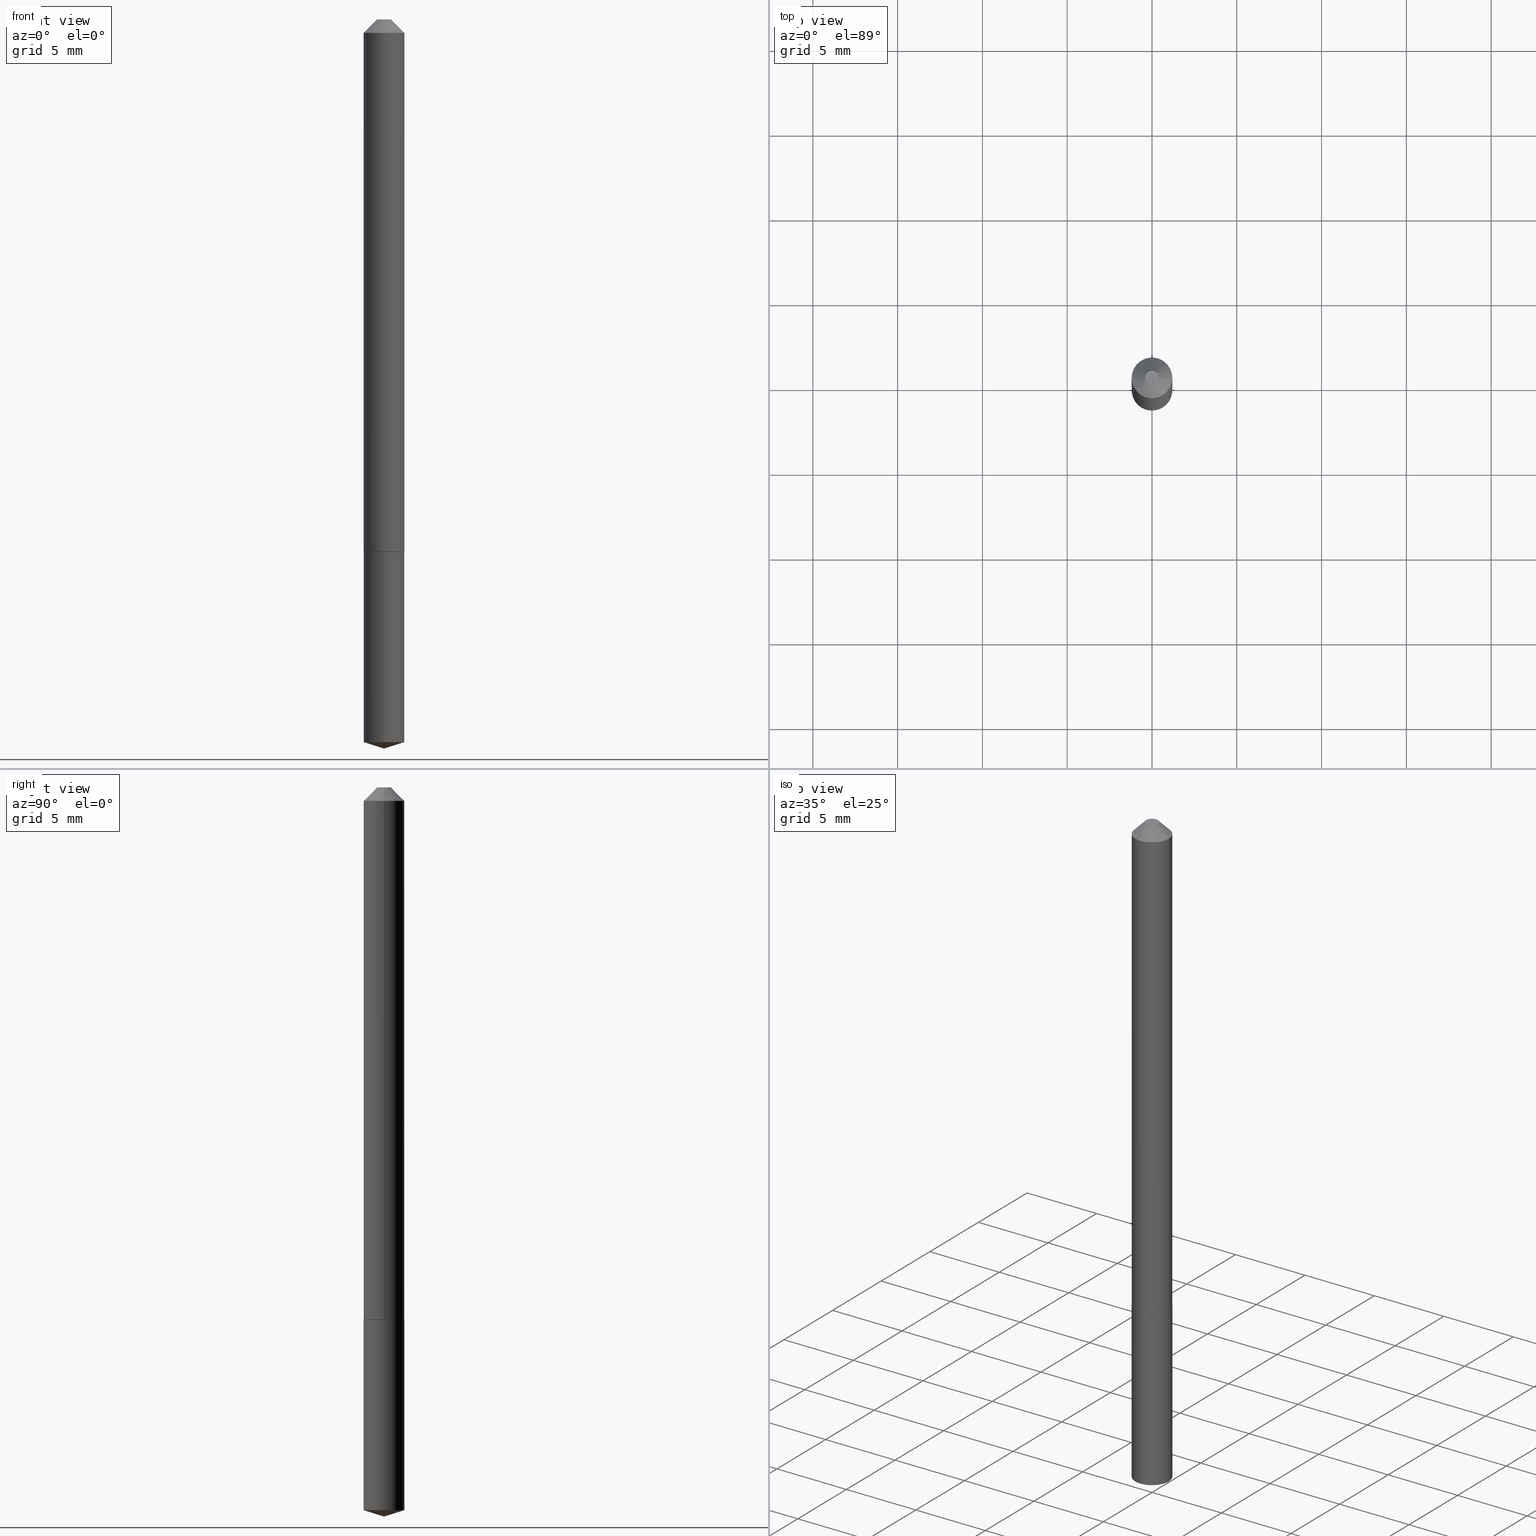
[diagram: canonical four-view strip — front | top / right | iso, engineering-drawing reading convention]
A machine part, canonical four-view strip (front | top / right | iso — engineering-drawing reading convention). The complete STEP part file that produces these views, byte-faithful:
ISO-10303-21;
HEADER;
FILE_DESCRIPTION (( 'STEP AP203' ),
    '1' );
FILE_NAME ('68672.STEP',
    '2024-04-23T13:31:14',
    ( '' ),
    ( '' ),
    'SwSTEP 2.0',
    'SolidWorks 2023',
    '' );
FILE_SCHEMA (( 'CONFIG_CONTROL_DESIGN' ));
ENDSEC;

DATA;
#1 = DIRECTION ( 'NONE',  ( -2.445468806185136597E-29, 3.491481338843145583E-15, 1.000000000000000000 ) ) ;
#2 =( CONVERSION_BASED_UNIT ( 'INCH', #122 ) LENGTH_UNIT ( ) NAMED_UNIT ( #339 ) );
#3 = CONICAL_SURFACE ( 'NONE', #368, 124.8659371009162413, 1.265363707695894346 ) ;
#4 = DIRECTION ( 'NONE',  ( 1.000000000000000000, -6.982962677686258822E-15, 0.000000000000000000 ) ) ;
#5 = AXIS2_PLACEMENT_3D ( 'NONE', #38, #278, #69 ) ;
#6 = CALENDAR_DATE ( 2024, 23, 4 ) ;
#7 = ORIENTED_EDGE ( 'NONE', *, *, #27, .F. ) ;
#8 = DIRECTION ( 'NONE',  ( 1.000000000000000000, -6.982962677686264344E-15, 0.000000000000000000 ) ) ;
#9 = CC_DESIGN_PERSON_AND_ORGANIZATION_ASSIGNMENT ( #281, #375, ( #144 ) ) ;
#10 = LOCAL_TIME ( 9, 31, 14.00000000000000000, #132 ) ;
#11 = ORIENTED_EDGE ( 'NONE', *, *, #201, .F. ) ;
#12 = DIRECTION ( 'NONE',  ( 6.982962677686265922E-15, 1.000000000000000000, -3.491451084886864100E-15 ) ) ;
#13 = ORIENTED_EDGE ( 'NONE', *, *, #333, .T. ) ;
#14 = DIRECTION ( 'NONE',  ( -1.000000000000000000, 6.982962677686266711E-15, 0.000000000000000000 ) ) ;
#15 = DIRECTION ( 'NONE',  ( -2.445468806185136597E-29, 3.491481338843145583E-15, 1.000000000000000000 ) ) ;
#16 = AXIS2_PLACEMENT_3D ( 'NONE', #216, #63, #243 ) ;
#17 = CIRCLE ( 'NONE', #94, 0.04724999999999999339 ) ;
#18 = ORIENTED_EDGE ( 'NONE', *, *, #40, .T. ) ;
#19 = ADVANCED_FACE ( 'NONE', ( #26 ), #149, .T. ) ;
#20 = VERTEX_POINT ( 'NONE', #139 ) ;
#21 = ORIENTED_EDGE ( 'NONE', *, *, #27, .T. ) ;
#22 = DATE_AND_TIME ( #171, #113 ) ;
#23 = AXIS2_PLACEMENT_3D ( 'NONE', #174, #313, #8 ) ;
#24 = ORIENTED_EDGE ( 'NONE', *, *, #106, .F. ) ;
#25 = AXIS2_PLACEMENT_3D ( 'NONE', #373, #277, #223 ) ;
#26 = FACE_OUTER_BOUND ( 'NONE', #199, .T. ) ;
#27 = EDGE_CURVE ( 'NONE', #172, #289, #336, .T. ) ;
#28 = AXIS2_PLACEMENT_3D ( 'NONE', #212, #271, #115 ) ;
#29 =( GEOMETRIC_REPRESENTATION_CONTEXT ( 3 ) GLOBAL_UNCERTAINTY_ASSIGNED_CONTEXT ( ( #295 ) ) GLOBAL_UNIT_ASSIGNED_CONTEXT ( ( #2, #306, #248 ) ) REPRESENTATION_CONTEXT ( 'NONE', 'WORKASPACE' ) );
#30 = PERSON_AND_ORGANIZATION ( #310, #117 ) ;
#31 = DIRECTION ( 'NONE',  ( -0.7071067811865414665, 7.493145998870332072E-15, 0.7071067811865535679 ) ) ;
#32 = CC_DESIGN_PERSON_AND_ORGANIZATION_ASSIGNMENT ( #249, #151, ( #144 ) ) ;
#33 = CARTESIAN_POINT ( 'NONE',  ( 4.139969906576709418E-29, -5.910677541604971908E-15, -1.692900000000000071 ) ) ;
#34 = EDGE_LOOP ( 'NONE', ( #206, #245, #141, #18 ) ) ;
#35 = CONICAL_SURFACE ( 'NONE', #268, 0.04725000000000000727, 0.7853981633974450594 ) ;
#36 = DIRECTION ( 'NONE',  ( 1.000000000000000000, 0.000000000000000000, 0.000000000000000000 ) ) ;
#37 = CARTESIAN_POINT ( 'NONE',  ( 4.103511204680673828E-29, -5.858699764941837648E-15, -1.678002132225468346 ) ) ;
#38 = CARTESIAN_POINT ( 'NONE',  ( -2.919964657261587705E-48, 4.168935659749541235E-34, 1.194030629168667070E-19 ) ) ;
#39 = PERSON_AND_ORGANIZATION_ROLE ( 'creator' ) ;
#40 = EDGE_CURVE ( 'NONE', #345, #107, #282, .T. ) ;
#41 = PERSON_AND_ORGANIZATION_ROLE ( 'classification_officer' ) ;
#42 = EDGE_LOOP ( 'NONE', ( #299, #356, #311 ) ) ;
#43 = CC_DESIGN_APPROVAL ( #120, ( #308 ) ) ;
#44 = CARTESIAN_POINT ( 'NONE',  ( -0.01599999999999999686, 1.662817987624036876E-16, 2.388061258327615898E-19 ) ) ;
#45 = EDGE_CURVE ( 'NONE', #72, #126, #266, .T. ) ;
#46 = LINE ( 'NONE', #96, #292 ) ;
#47 = CONICAL_SURFACE ( 'NONE', #330, 0.04725000000000000727, 0.7853981633974450594 ) ;
#48 = PERSON_AND_ORGANIZATION ( #310, #117 ) ;
#49 = CARTESIAN_POINT ( 'NONE',  ( 4.139970364593886493E-29, -5.910677541604971908E-15, -1.692900000000000071 ) ) ;
#50 = PRODUCT_DEFINITION ( 'UNKNOWN', '', #144, #210 ) ;
#51 = PLANE ( 'NONE',  #135 ) ;
#52 = CARTESIAN_POINT ( 'NONE',  ( 7.642090019328602662E-31, -1.091087918388490267E-16, -0.03125000000000020817 ) ) ;
#53 = DIRECTION ( 'NONE',  ( 2.445468806185136597E-29, -3.491481338843145583E-15, -1.000000000000000000 ) ) ;
#54 = ORIENTED_EDGE ( 'NONE', *, *, #201, .T. ) ;
#55 = DIRECTION ( 'NONE',  ( 1.000000000000000000, -6.982962677686266711E-15, 4.876172707875571814E-29 ) ) ;
#56 = CONICAL_SURFACE ( 'NONE', #58, 124.8659371009162413, 1.265363707695894346 ) ;
#57 = PRODUCT_RELATED_PRODUCT_CATEGORY ( 'detail', '', ( #370 ) ) ;
#58 = AXIS2_PLACEMENT_3D ( 'NONE', #324, #301, #357 ) ;
#59 = CYLINDRICAL_SURFACE ( 'NONE', #150, 0.04725000000000006972 ) ;
#60 = VERTEX_POINT ( 'NONE', #267 ) ;
#61 = CARTESIAN_POINT ( 'NONE',  ( 4.139917674098620445E-29, -5.910752341486483366E-15, -1.692900000000000071 ) ) ;
#62 = AXIS2_PLACEMENT_3D ( 'NONE', #111, #293, #80 ) ;
#63 = DIRECTION ( 'NONE',  ( -2.445468806185136597E-29, 3.491481338843145583E-15, 1.000000000000000000 ) ) ;
#64 = VERTEX_POINT ( 'NONE', #360 ) ;
#65 = CALENDAR_DATE ( 2024, 23, 4 ) ;
#66 = CARTESIAN_POINT ( 'NONE',  ( 3.023088538206066600E-29, -4.316169231077897395E-15, -1.236200000000000410 ) ) ;
#67 = LINE ( 'NONE', #155, #367 ) ;
#68 = CALENDAR_DATE ( 2024, 23, 4 ) ;
#69 = DIRECTION ( 'NONE',  ( -1.000000000000000000, 6.982962677686265922E-15, -4.876176775795935793E-29 ) ) ;
#70 = ORIENTED_EDGE ( 'NONE', *, *, #89, .F. ) ;
#71 = AXIS2_PLACEMENT_3D ( 'NONE', #90, #114, #358 ) ;
#72 = VERTEX_POINT ( 'NONE', #33 ) ;
#73 = DIRECTION ( 'NONE',  ( -2.445489932409893586E-29, 3.491451084886863706E-15, 1.000000000000000000 ) ) ;
#74 = EDGE_CURVE ( 'NONE', #237, #64, #157, .T. ) ;
#75 = DIRECTION ( 'NONE',  ( 2.445489932409892745E-29, -3.491451084886864100E-15, -1.000000000000000000 ) ) ;
#76 = ORIENTED_EDGE ( 'NONE', *, *, #365, .F. ) ;
#77 = EDGE_CURVE ( 'NONE', #289, #305, #145, .T. ) ;
#78 = DIRECTION ( 'NONE',  ( -6.982962677686267499E-15, -1.000000000000000000, 3.500519750498671300E-15 ) ) ;
#79 =( LENGTH_UNIT ( ) NAMED_UNIT ( * ) SI_UNIT ( $, .METRE. ) );
#80 = DIRECTION ( 'NONE',  ( 1.000000000000000000, -6.982962677686264344E-15, 0.000000000000000000 ) ) ;
#81 = CC_DESIGN_APPROVAL ( #236, ( #144 ) ) ;
#82 = ORIENTED_EDGE ( 'NONE', *, *, #77, .F. ) ;
#83 = DIRECTION ( 'NONE',  ( -2.445489932409893586E-29, 3.491451084886863706E-15, 1.000000000000000000 ) ) ;
#84 = ORIENTED_EDGE ( 'NONE', *, *, #246, .F. ) ;
#85 = CC_DESIGN_DATE_AND_TIME_ASSIGNMENT ( #314, #100, ( #308 ) ) ;
#86 = DIRECTION ( 'NONE',  ( -2.445468806185136597E-29, 3.491481338843145583E-15, 1.000000000000000000 ) ) ;
#87 = LOCAL_TIME ( 9, 31, 14.00000000000000000, #276 ) ;
#88 = CARTESIAN_POINT ( 'NONE',  ( 0.04725000000000000727, -4.390537783595251574E-16, -0.03125000000000020817 ) ) ;
#89 = EDGE_CURVE ( 'NONE', #107, #345, #388, .T. ) ;
#90 = CARTESIAN_POINT ( 'NONE',  ( -5.839929314523175409E-48, 8.337871319499082469E-34, 2.388061258337334140E-19 ) ) ;
#91 = PERSON_AND_ORGANIZATION ( #310, #117 ) ;
#92 = CARTESIAN_POINT ( 'NONE',  ( -3.299449865206457842E-16, -0.04725000000000431633, -1.236199999999999966 ) ) ;
#93 = CIRCLE ( 'NONE', #366, 0.04725000000000015299 ) ;
#94 = AXIS2_PLACEMENT_3D ( 'NONE', #381, #73, #138 ) ;
#95 = MANIFOLD_SOLID_BREP ( 'Body-Move/Copy2[1]', #344 ) ;
#96 = CARTESIAN_POINT ( 'NONE',  ( -0.04725000000000000727, 2.208361946818271286E-16, -0.03125000000000020817 ) ) ;
#97 = VECTOR ( 'NONE', #280, 39.37007874015748143 ) ;
#98 = EDGE_CURVE ( 'NONE', #60, #305, #93, .T. ) ;
#99 = DIRECTION ( 'NONE',  ( 0.7071067811865414665, -2.468850131082193557E-15, 0.7071067811865535679 ) ) ;
#100 = DATE_TIME_ROLE ( 'classification_date' ) ;
#101 = DIRECTION ( 'NONE',  ( -2.445468806185136877E-29, 3.491481338843145188E-15, 1.000000000000000000 ) ) ;
#102 = ORIENTED_EDGE ( 'NONE', *, *, #77, .T. ) ;
#103 = DIRECTION ( 'NONE',  ( 1.000000000000000000, -6.982962677686264344E-15, 0.000000000000000000 ) ) ;
#104 = CONICAL_SURFACE ( 'NONE', #62, 0.04725000000000015299, 0.7853981633974397303 ) ;
#105 = AXIS2_PLACEMENT_3D ( 'NONE', #371, #250, #125 ) ;
#106 = EDGE_CURVE ( 'NONE', #126, #182, #179, .T. ) ;
#107 = VERTEX_POINT ( 'NONE', #88 ) ;
#108 = EDGE_LOOP ( 'NONE', ( #11, #140, #167, #202 ) ) ;
#109 = CARTESIAN_POINT ( 'NONE',  ( 0.000000000000000000, 0.000000000000000000, 0.000000000000000000 ) ) ;
#110 = CLOSED_SHELL ( 'NONE', ( #321, #352, #177, #343, #147, #112, #192, #229 ) ) ;
#111 = CARTESIAN_POINT ( 'NONE',  ( 3.021865803802974359E-29, -4.314423490408476680E-15, -1.235700000000000465 ) ) ;
#112 = ADVANCED_FACE ( 'NONE', ( #215 ), #169, .T. ) ;
#113 = LOCAL_TIME ( 9, 31, 14.00000000000000000, #351 ) ;
#114 = DIRECTION ( 'NONE',  ( -2.445468806185136597E-29, 3.491481338843145583E-15, 1.000000000000000000 ) ) ;
#115 = DIRECTION ( 'NONE',  ( -6.982962677686265922E-15, -1.000000000000000000, 5.781688875479922944E-15 ) ) ;
#116 = DIRECTION ( 'NONE',  ( 1.000000000000000000, -6.982962677686265922E-15, 4.876176775795935793E-29 ) ) ;
#117 = ORGANIZATION ( 'UNSPECIFIED', 'UNSPECIFIED', '' ) ;
#118 = DIRECTION ( 'NONE',  ( 0.000000000000000000, 0.000000000000000000, 1.000000000000000000 ) ) ;
#119 = CARTESIAN_POINT ( 'NONE',  ( 7.642090019328602662E-31, -1.091087918388490267E-16, -0.03125000000000020817 ) ) ;
#120 = APPROVAL ( #252, 'UNSPECIFIED' ) ;
#121 = APPLICATION_CONTEXT ( 'configuration controlled 3d designs of mechanical parts and assemblies' ) ;
#122 = LENGTH_MEASURE_WITH_UNIT ( LENGTH_MEASURE( 0.02539999999999999897 ), #79 );
#123 = DIRECTION ( 'NONE',  ( -2.445489932409893586E-29, 3.491451084886863706E-15, 1.000000000000000000 ) ) ;
#124 = DATE_AND_TIME ( #65, #244 ) ;
#125 = DIRECTION ( 'NONE',  ( 1.000000000000000000, -6.982962677686258822E-15, 0.000000000000000000 ) ) ;
#126 = VERTEX_POINT ( 'NONE', #143 ) ;
#127 = CONICAL_SURFACE ( 'NONE', #23, 0.04725000000000015299, 0.7853981633974397303 ) ;
#128 = EDGE_CURVE ( 'NONE', #182, #270, #290, .T. ) ;
#129 = EDGE_LOOP ( 'NONE', ( #256, #176 ) ) ;
#130 = LINE ( 'NONE', #374, #142 ) ;
#131 = CC_DESIGN_SECURITY_CLASSIFICATION ( #308, ( #144 ) ) ;
#132 = COORDINATED_UNIVERSAL_TIME_OFFSET ( 5, 0, .BEHIND. ) ;
#133 = CARTESIAN_POINT ( 'NONE',  ( -5.839929314523175409E-48, 8.337871319499082469E-34, 2.388061258337334140E-19 ) ) ;
#134 = VECTOR ( 'NONE', #31, 39.37007874015748143 ) ;
#135 = AXIS2_PLACEMENT_3D ( 'NONE', #380, #75, #12 ) ;
#136 = FACE_OUTER_BOUND ( 'NONE', #42, .T. ) ;
#137 = ORIENTED_EDGE ( 'NONE', *, *, #128, .F. ) ;
#138 = DIRECTION ( 'NONE',  ( -6.982962677686265922E-15, -1.000000000000000000, 5.781688875479922944E-15 ) ) ;
#139 = CARTESIAN_POINT ( 'NONE',  ( 3.357314426466882624E-16, 0.04724999999999413003, -1.678002132225468790 ) ) ;
#140 = ORIENTED_EDGE ( 'NONE', *, *, #254, .T. ) ;
#141 = ORIENTED_EDGE ( 'NONE', *, *, #296, .T. ) ;
#142 = VECTOR ( 'NONE', #99, 39.37007874015748143 ) ;
#143 = CARTESIAN_POINT ( 'NONE',  ( -3.299449865206349866E-16, -0.04725000000000584288, -1.678002132225468124 ) ) ;
#144 = PRODUCT_DEFINITION_FORMATION_WITH_SPECIFIED_SOURCE ( 'ANY', '', #370, .NOT_KNOWN. ) ;
#145 = LINE ( 'NONE', #329, #134 ) ;
#146 = DIRECTION ( 'NONE',  ( -2.438088387897960049E-29, 3.491481338843145188E-15, 1.000000000000000000 ) ) ;
#147 = ADVANCED_FACE ( 'NONE', ( #387 ), #104, .T. ) ;
#148 = DIRECTION ( 'NONE',  ( -2.445489932409893305E-29, 3.491451084886864100E-15, 1.000000000000000000 ) ) ;
#149 = CYLINDRICAL_SURFACE ( 'NONE', #28, 0.04724999999999999339 ) ;
#150 = AXIS2_PLACEMENT_3D ( 'NONE', #258, #196, #297 ) ;
#151 = PERSON_AND_ORGANIZATION_ROLE ( 'design_supplier' ) ;
#152 = APPROVAL ( #205, 'UNSPECIFIED' ) ;
#153 = EDGE_LOOP ( 'NONE', ( #7, #326 ) ) ;
#154 = LOCAL_TIME ( 9, 31, 14.00000000000000000, #224 ) ;
#155 = CARTESIAN_POINT ( 'NONE',  ( 0.04725000000000006972, -3.299449865206765991E-16, 2.303993526563583334E-30 ) ) ;
#156 = APPROVAL_ROLE ( '' ) ;
#157 = CIRCLE ( 'NONE', #71, 0.01599999999999999686 ) ;
#158 = ADVANCED_FACE ( 'NONE', ( #204 ), #56, .T. ) ;
#159 = ORIENTED_EDGE ( 'NONE', *, *, #228, .F. ) ;
#160 = LINE ( 'NONE', #286, #304 ) ;
#161 = DIRECTION ( 'NONE',  ( 2.445468806185136597E-29, -3.491481338843145583E-15, -1.000000000000000000 ) ) ;
#162 = DIRECTION ( 'NONE',  ( -1.000000000000000000, 6.982962677686266711E-15, 0.000000000000000000 ) ) ;
#163 = EDGE_LOOP ( 'NONE', ( #21, #102, #175, #159 ) ) ;
#164 = AXIS2_PLACEMENT_3D ( 'NONE', #119, #364, #355 ) ;
#165 = CIRCLE ( 'NONE', #361, 0.04725000000000015299 ) ;
#166 = PERSON_AND_ORGANIZATION ( #310, #117 ) ;
#167 = ORIENTED_EDGE ( 'NONE', *, *, #106, .T. ) ;
#168 = PERSON_AND_ORGANIZATION_ROLE ( 'design_owner' ) ;
#169 = CYLINDRICAL_SURFACE ( 'NONE', #382, 0.04725000000000006972 ) ;
#170 = PRODUCT_DEFINITION_SHAPE ( 'NONE', 'NONE',  #50 ) ;
#171 = CALENDAR_DATE ( 2024, 23, 4 ) ;
#172 = VERTEX_POINT ( 'NONE', #334 ) ;
#173 = DIRECTION ( 'NONE',  ( -0.7071067811865452413, 2.468850131082233000E-15, -0.7071067811865497932 ) ) ;
#174 = CARTESIAN_POINT ( 'NONE',  ( 3.021865803802974359E-29, -4.314423490408476680E-15, -1.235700000000000465 ) ) ;
#175 = ORIENTED_EDGE ( 'NONE', *, *, #98, .F. ) ;
#176 = ORIENTED_EDGE ( 'NONE', *, *, #180, .T. ) ;
#177 = ADVANCED_FACE ( 'NONE', ( #307 ), #127, .T. ) ;
#178 = VECTOR ( 'NONE', #346, 39.37007874015748143 ) ;
#179 = LINE ( 'NONE', #303, #197 ) ;
#180 = EDGE_CURVE ( 'NONE', #270, #182, #379, .T. ) ;
#181 = MECHANICAL_CONTEXT ( 'NONE', #279, 'mechanical' ) ;
#182 = VERTEX_POINT ( 'NONE', #92 ) ;
#183 = VECTOR ( 'NONE', #241, 39.37007874015748854 ) ;
#184 = CARTESIAN_POINT ( 'NONE',  ( 0.000000000000000000, 0.000000000000000000, 0.000000000000000000 ) ) ;
#185 = CC_DESIGN_PERSON_AND_ORGANIZATION_ASSIGNMENT ( #30, #41, ( #308 ) ) ;
#186 = PLANE ( 'NONE',  #5 ) ;
#187 = ORIENTED_EDGE ( 'NONE', *, *, #340, .F. ) ;
#188 = DIRECTION ( 'NONE',  ( -2.445489932409893586E-29, 3.491451084886863706E-15, 1.000000000000000000 ) ) ;
#189 = AXIS2_PLACEMENT_3D ( 'NONE', #133, #15, #55 ) ;
#190 = CARTESIAN_POINT ( 'NONE',  ( 3.357314426466883117E-16, 0.04724999999999567740, -1.236200000000000632 ) ) ;
#191 = DATE_AND_TIME ( #68, #10 ) ;
#192 = ADVANCED_FACE ( 'NONE', ( #217 ), #47, .T. ) ;
#193 = ORIENTED_EDGE ( 'NONE', *, *, #340, .T. ) ;
#194 = DIRECTION ( 'NONE',  ( -2.445468806185136877E-29, 3.491481338843145188E-15, 1.000000000000000000 ) ) ;
#195 = ORIENTED_EDGE ( 'NONE', *, *, #296, .F. ) ;
#196 = DIRECTION ( 'NONE',  ( -2.445468806185136597E-29, 3.491481338843145583E-15, 1.000000000000000000 ) ) ;
#197 = VECTOR ( 'NONE', #148, 39.37007874015748143 ) ;
#198 = FACE_OUTER_BOUND ( 'NONE', #129, .T. ) ;
#199 = EDGE_LOOP ( 'NONE', ( #193, #54, #137, #24 ) ) ;
#200 = ORIENTED_EDGE ( 'NONE', *, *, #45, .F. ) ;
#201 = EDGE_CURVE ( 'NONE', #20, #270, #160, .T. ) ;
#202 = ORIENTED_EDGE ( 'NONE', *, *, #180, .F. ) ;
#203 = CIRCLE ( 'NONE', #105, 0.04675000000000025663 ) ;
#204 = FACE_OUTER_BOUND ( 'NONE', #263, .T. ) ;
#205 = APPROVAL_STATUS ( 'not_yet_approved' ) ;
#206 = ORIENTED_EDGE ( 'NONE', *, *, #337, .F. ) ;
#207 = ORIENTED_EDGE ( 'NONE', *, *, #316, .T. ) ;
#208 = EDGE_LOOP ( 'NONE', ( #332, #13 ) ) ;
#209 = DIRECTION ( 'NONE',  ( -2.445468806185136597E-29, 3.491481338843145583E-15, 1.000000000000000000 ) ) ;
#210 = DESIGN_CONTEXT ( 'detailed design', #121, 'design' ) ;
#211 = EDGE_LOOP ( 'NONE', ( #82, #349, #390, #363 ) ) ;
#212 = CARTESIAN_POINT ( 'NONE',  ( 3.023088538206066600E-29, -4.316169231077897395E-15, -1.236200000000000410 ) ) ;
#213 = CIRCLE ( 'NONE', #225, 0.04724999999999999339 ) ;
#214 = DATE_AND_TIME ( #242, #87 ) ;
#215 = FACE_OUTER_BOUND ( 'NONE', #353, .T. ) ;
#216 = CARTESIAN_POINT ( 'NONE',  ( 7.642090019328602662E-31, -1.091087918388490267E-16, -0.03125000000000020817 ) ) ;
#217 = FACE_OUTER_BOUND ( 'NONE', #34, .T. ) ;
#218 = SECURITY_CLASSIFICATION_LEVEL ( 'unclassified' ) ;
#219 = APPROVAL_DATE_TIME ( #22, #152 ) ;
#220 = ADVANCED_FACE ( 'NONE', ( #136 ), #3, .T. ) ;
#221 = FACE_OUTER_BOUND ( 'NONE', #108, .T. ) ;
#222 = AXIS2_PLACEMENT_3D ( 'NONE', #359, #83, #269 ) ;
#223 = DIRECTION ( 'NONE',  ( -6.982962677686265922E-15, -1.000000000000000000, 5.781688875479922944E-15 ) ) ;
#224 = COORDINATED_UNIVERSAL_TIME_OFFSET ( 5, 0, .BEHIND. ) ;
#225 = AXIS2_PLACEMENT_3D ( 'NONE', #37, #123, #369 ) ;
#226 = FACE_OUTER_BOUND ( 'NONE', #208, .T. ) ;
#227 = COORDINATED_UNIVERSAL_TIME_OFFSET ( 5, 0, .BEHIND. ) ;
#228 = EDGE_CURVE ( 'NONE', #172, #60, #130, .T. ) ;
#229 = ADVANCED_FACE ( 'NONE', ( #226 ), #186, .F. ) ;
#230 = CARTESIAN_POINT ( 'NONE',  ( 7.642090019328602662E-31, -1.091087918388490267E-16, -0.03125000000000020817 ) ) ;
#231 = MANIFOLD_SOLID_BREP ( 'Body-Move/Copy2[2]', #110 ) ;
#232 = AXIS2_PLACEMENT_3D ( 'NONE', #348, #146, #116 ) ;
#233 = ORIENTED_EDGE ( 'NONE', *, *, #98, .T. ) ;
#234 = PLANE ( 'NONE',  #232 ) ;
#235 = PERSON_AND_ORGANIZATION ( #310, #117 ) ;
#236 = APPROVAL ( #309, 'UNSPECIFIED' ) ;
#237 = VERTEX_POINT ( 'NONE', #44 ) ;
#238 = VECTOR ( 'NONE', #101, 39.37007874015748143 ) ;
#239 = EDGE_CURVE ( 'NONE', #289, #172, #203, .T. ) ;
#240 = EDGE_LOOP ( 'NONE', ( #233, #275, #70, #84 ) ) ;
#241 = DIRECTION ( 'NONE',  ( -6.659769872151637611E-15, -0.9537169507482274877, 0.3007057995042712317 ) ) ;
#242 = CALENDAR_DATE ( 2024, 23, 4 ) ;
#243 = DIRECTION ( 'NONE',  ( 1.000000000000000000, -6.982962677686266711E-15, 0.000000000000000000 ) ) ;
#244 = LOCAL_TIME ( 9, 31, 14.00000000000000000, #227 ) ;
#245 = ORIENTED_EDGE ( 'NONE', *, *, #74, .F. ) ;
#246 = EDGE_CURVE ( 'NONE', #60, #107, #67, .T. ) ;
#247 = DATE_TIME_ROLE ( 'creation_date' ) ;
#248 =( NAMED_UNIT ( * ) SI_UNIT ( $, .STERADIAN. ) SOLID_ANGLE_UNIT ( ) );
#249 = PERSON_AND_ORGANIZATION ( #310, #117 ) ;
#250 = DIRECTION ( 'NONE',  ( -2.445468806185136597E-29, 3.491481338843145583E-15, 1.000000000000000000 ) ) ;
#251 = EDGE_CURVE ( 'NONE', #72, #20, #317, .T. ) ;
#252 = APPROVAL_STATUS ( 'not_yet_approved' ) ;
#253 = ORIENTED_EDGE ( 'NONE', *, *, #251, .T. ) ;
#254 = EDGE_CURVE ( 'NONE', #20, #126, #213, .T. ) ;
#255 = CYLINDRICAL_SURFACE ( 'NONE', #284, 0.04724999999999999339 ) ;
#256 = ORIENTED_EDGE ( 'NONE', *, *, #128, .T. ) ;
#257 = LINE ( 'NONE', #377, #238 ) ;
#258 = CARTESIAN_POINT ( 'NONE',  ( 0.000000000000000000, 0.000000000000000000, 0.000000000000000000 ) ) ;
#259 = ORIENTED_EDGE ( 'NONE', *, *, #40, .F. ) ;
#260 = ORIENTED_EDGE ( 'NONE', *, *, #246, .T. ) ;
#261 = APPROVAL_PERSON_ORGANIZATION ( #166, #152, #325 ) ;
#262 = CARTESIAN_POINT ( 'NONE',  ( -9.213918740690224064E-28, 1.315479891878583587E-13, 37.67717874015747981 ) ) ;
#263 = EDGE_LOOP ( 'NONE', ( #200, #253, #187 ) ) ;
#264 = FACE_OUTER_BOUND ( 'NONE', #153, .T. ) ;
#265 = CC_DESIGN_PERSON_AND_ORGANIZATION_ASSIGNMENT ( #235, #168, ( #370 ) ) ;
#266 = LINE ( 'NONE', #61, #183 ) ;
#267 = CARTESIAN_POINT ( 'NONE',  ( 0.04725000000000015299, -4.644368476929153477E-15, -1.235700000000000465 ) ) ;
#268 = AXIS2_PLACEMENT_3D ( 'NONE', #52, #161, #14 ) ;
#269 = DIRECTION ( 'NONE',  ( -6.982962677686265922E-15, -1.000000000000000000, 5.781688875479922944E-15 ) ) ;
#270 = VERTEX_POINT ( 'NONE', #190 ) ;
#271 = DIRECTION ( 'NONE',  ( -2.445489932409893586E-29, 3.491451084886863706E-15, 1.000000000000000000 ) ) ;
#272 = ADVANCED_FACE ( 'NONE', ( #221 ), #255, .T. ) ;
#273 = CARTESIAN_POINT ( 'NONE',  ( 3.023088538206066600E-29, -4.316169231077897395E-15, -1.236200000000000410 ) ) ;
#274 = AXIS2_PLACEMENT_3D ( 'NONE', #184, #118, #36 ) ;
#275 = ORIENTED_EDGE ( 'NONE', *, *, #365, .T. ) ;
#276 = COORDINATED_UNIVERSAL_TIME_OFFSET ( 5, 0, .BEHIND. ) ;
#277 = DIRECTION ( 'NONE',  ( -2.445489932409893586E-29, 3.491451084886863706E-15, 1.000000000000000000 ) ) ;
#278 = DIRECTION ( 'NONE',  ( 2.438088387897960049E-29, -3.491481338843145188E-15, -1.000000000000000000 ) ) ;
#279 = APPLICATION_CONTEXT ( 'configuration controlled 3d designs of mechanical parts and assemblies' ) ;
#280 = DIRECTION ( 'NONE',  ( 6.776566513254262871E-15, 0.9537169507482295971, 0.3007057995042646259 ) ) ;
#281 = PERSON_AND_ORGANIZATION ( #310, #117 ) ;
#282 = CIRCLE ( 'NONE', #164, 0.04725000000000000727 ) ;
#283 = APPROVAL_DATE_TIME ( #191, #236 ) ;
#284 = AXIS2_PLACEMENT_3D ( 'NONE', #66, #188, #312 ) ;
#285 = ORIENTED_EDGE ( 'NONE', *, *, #333, .F. ) ;
#286 = CARTESIAN_POINT ( 'NONE',  ( 3.357314426466774648E-16, 0.04724999999999567740, -1.236200000000000632 ) ) ;
#287 = CARTESIAN_POINT ( 'NONE',  ( -0.04725000000000000727, -1.876034698477013480E-15, -0.03125000000000020817 ) ) ;
#288 = DIRECTION ( 'NONE',  ( -2.445489932409893305E-29, 3.491451084886864100E-15, 1.000000000000000000 ) ) ;
#289 = VERTEX_POINT ( 'NONE', #372 ) ;
#290 = CIRCLE ( 'NONE', #222, 0.04724999999999999339 ) ;
#291 = CC_DESIGN_DATE_AND_TIME_ASSIGNMENT ( #214, #247, ( #50 ) ) ;
#292 = VECTOR ( 'NONE', #173, 39.37007874015748143 ) ;
#293 = DIRECTION ( 'NONE',  ( -2.445468806185136597E-29, 3.491481338843145583E-15, 1.000000000000000000 ) ) ;
#294 = FACE_OUTER_BOUND ( 'NONE', #240, .T. ) ;
#295 = UNCERTAINTY_MEASURE_WITH_UNIT (LENGTH_MEASURE( 1.000000000000000082E-05 ), #2, 'distance_accuracy_value', 'NONE');
#296 = EDGE_CURVE ( 'NONE', #237, #345, #46, .T. ) ;
#297 = DIRECTION ( 'NONE',  ( 1.000000000000000000, -6.982962677686266711E-15, 4.876176775795936353E-29 ) ) ;
#298 = FACE_OUTER_BOUND ( 'NONE', #327, .T. ) ;
#299 = ORIENTED_EDGE ( 'NONE', *, *, #251, .F. ) ;
#300 = ORIENTED_EDGE ( 'NONE', *, *, #337, .T. ) ;
#301 = DIRECTION ( 'NONE',  ( -2.445489932409893586E-29, 3.491451084886863706E-15, 1.000000000000000000 ) ) ;
#302 = APPLICATION_PROTOCOL_DEFINITION ( 'international standard', 'config_control_design', 1994, #279 ) ;
#303 = CARTESIAN_POINT ( 'NONE',  ( -3.299449865206457842E-16, -0.04725000000000431633, -1.236199999999999966 ) ) ;
#304 = VECTOR ( 'NONE', #288, 39.37007874015748143 ) ;
#305 = VERTEX_POINT ( 'NONE', #347 ) ;
#306 =( NAMED_UNIT ( * ) PLANE_ANGLE_UNIT ( ) SI_UNIT ( $, .RADIAN. ) );
#307 = FACE_OUTER_BOUND ( 'NONE', #163, .T. ) ;
#308 = SECURITY_CLASSIFICATION ( '', '', #218 ) ;
#309 = APPROVAL_STATUS ( 'not_yet_approved' ) ;
#310 = PERSON ( 'UNSPECIFIED', 'UNSPECIFIED', 'UNSPECIFIED', ('UNSPECIFIED'), ('UNSPECIFIED'), ('UNSPECIFIED') ) ;
#311 = ORIENTED_EDGE ( 'NONE', *, *, #254, .F. ) ;
#312 = DIRECTION ( 'NONE',  ( -6.982962677686265922E-15, -1.000000000000000000, 5.781688875479922944E-15 ) ) ;
#313 = DIRECTION ( 'NONE',  ( -2.445468806185136597E-29, 3.491481338843145583E-15, 1.000000000000000000 ) ) ;
#314 = DATE_AND_TIME ( #6, #154 ) ;
#315 = ORIENTED_EDGE ( 'NONE', *, *, #89, .T. ) ;
#316 = EDGE_CURVE ( 'NONE', #305, #60, #165, .T. ) ;
#317 = LINE ( 'NONE', #49, #97 ) ;
#318 = SHAPE_DEFINITION_REPRESENTATION ( #170, #342 ) ;
#319 = CC_DESIGN_APPROVAL ( #152, ( #50 ) ) ;
#320 = APPROVAL_ROLE ( '' ) ;
#321 = ADVANCED_FACE ( 'NONE', ( #298 ), #35, .T. ) ;
#322 = APPLICATION_PROTOCOL_DEFINITION ( 'international standard', 'config_control_design', 1994, #121 ) ;
#323 = CIRCLE ( 'NONE', #189, 0.01599999999999999686 ) ;
#324 = CARTESIAN_POINT ( 'NONE',  ( -9.213918740690224064E-28, 1.315479891878583587E-13, 37.67717874015747981 ) ) ;
#325 = APPROVAL_ROLE ( '' ) ;
#326 = ORIENTED_EDGE ( 'NONE', *, *, #239, .F. ) ;
#327 = EDGE_LOOP ( 'NONE', ( #285, #300, #315, #195 ) ) ;
#328 = CARTESIAN_POINT ( 'NONE',  ( 3.021865803802974359E-29, -4.314423490408476680E-15, -1.235700000000000465 ) ) ;
#329 = CARTESIAN_POINT ( 'NONE',  ( -0.04725000000000015299, -3.978692047761827664E-15, -1.235700000000000465 ) ) ;
#330 = AXIS2_PLACEMENT_3D ( 'NONE', #230, #53, #162 ) ;
#331 = APPROVAL_PERSON_ORGANIZATION ( #91, #236, #320 ) ;
#332 = ORIENTED_EDGE ( 'NONE', *, *, #74, .T. ) ;
#333 = EDGE_CURVE ( 'NONE', #64, #237, #323, .T. ) ;
#334 = CARTESIAN_POINT ( 'NONE',  ( 0.04675000000000025663, -4.642622736259731973E-15, -1.236200000000000410 ) ) ;
#335 = CARTESIAN_POINT ( 'NONE',  ( 3.021865803802974359E-29, -4.314423490408476680E-15, -1.235700000000000465 ) ) ;
#336 = CIRCLE ( 'NONE', #354, 0.04675000000000025663 ) ;
#337 = EDGE_CURVE ( 'NONE', #64, #107, #389, .T. ) ;
#338 = PERSON_AND_ORGANIZATION ( #310, #117 ) ;
#339 = DIMENSIONAL_EXPONENTS ( 1.000000000000000000, 0.000000000000000000, 0.000000000000000000, 0.000000000000000000, 0.000000000000000000, 0.000000000000000000, 0.000000000000000000 ) ;
#340 = EDGE_CURVE ( 'NONE', #126, #20, #17, .T. ) ;
#341 = APPROVAL_DATE_TIME ( #124, #120 ) ;
#342 = ADVANCED_BREP_SHAPE_REPRESENTATION ( '68672', ( #95, #231, #274 ), #29 ) ;
#343 = ADVANCED_FACE ( 'NONE', ( #264 ), #234, .F. ) ;
#344 = CLOSED_SHELL ( 'NONE', ( #19, #158, #220, #272, #378 ) ) ;
#345 = VERTEX_POINT ( 'NONE', #287 ) ;
#346 = DIRECTION ( 'NONE',  ( 0.7071067811865452413, -7.319954787623248157E-15, -0.7071067811865497932 ) ) ;
#347 = CARTESIAN_POINT ( 'NONE',  ( -0.04725000000000015299, -3.978692047761827664E-15, -1.235700000000000465 ) ) ;
#348 = CARTESIAN_POINT ( 'NONE',  ( 3.023088538206066600E-29, -4.316169231077897395E-15, -1.236200000000000410 ) ) ;
#349 = ORIENTED_EDGE ( 'NONE', *, *, #239, .T. ) ;
#350 = DIRECTION ( 'NONE',  ( 1.000000000000000000, -6.982962677686266711E-15, 4.876176775795936353E-29 ) ) ;
#351 = COORDINATED_UNIVERSAL_TIME_OFFSET ( 5, 0, .BEHIND. ) ;
#352 = ADVANCED_FACE ( 'NONE', ( #294 ), #59, .T. ) ;
#353 = EDGE_LOOP ( 'NONE', ( #76, #207, #260, #259 ) ) ;
#354 = AXIS2_PLACEMENT_3D ( 'NONE', #273, #1, #4 ) ;
#355 = DIRECTION ( 'NONE',  ( 1.000000000000000000, -6.982962677686266711E-15, 0.000000000000000000 ) ) ;
#356 = ORIENTED_EDGE ( 'NONE', *, *, #45, .T. ) ;
#357 = DIRECTION ( 'NONE',  ( -6.982962677686267499E-15, -1.000000000000000000, 3.500519750498671300E-15 ) ) ;
#358 = DIRECTION ( 'NONE',  ( 1.000000000000000000, -6.982962677686266711E-15, 4.876172707875571814E-29 ) ) ;
#359 = CARTESIAN_POINT ( 'NONE',  ( 3.023088538206066600E-29, -4.316169231077897395E-15, -1.236200000000000410 ) ) ;
#360 = CARTESIAN_POINT ( 'NONE',  ( 0.01599999999999999686, -2.715176450989491922E-16, 2.388061258350727057E-19 ) ) ;
#361 = AXIS2_PLACEMENT_3D ( 'NONE', #328, #209, #103 ) ;
#362 = CC_DESIGN_PERSON_AND_ORGANIZATION_ASSIGNMENT ( #338, #39, ( #50 ) ) ;
#363 = ORIENTED_EDGE ( 'NONE', *, *, #316, .F. ) ;
#364 = DIRECTION ( 'NONE',  ( -2.445468806185136597E-29, 3.491481338843145583E-15, 1.000000000000000000 ) ) ;
#365 = EDGE_CURVE ( 'NONE', #305, #345, #257, .T. ) ;
#366 = AXIS2_PLACEMENT_3D ( 'NONE', #335, #86, #386 ) ;
#367 = VECTOR ( 'NONE', #194, 39.37007874015748143 ) ;
#368 = AXIS2_PLACEMENT_3D ( 'NONE', #262, #384, #78 ) ;
#369 = DIRECTION ( 'NONE',  ( -6.982962677686265922E-15, -1.000000000000000000, 5.781688875479922944E-15 ) ) ;
#370 = PRODUCT ( '68672', '68672', '', ( #181 ) ) ;
#371 = CARTESIAN_POINT ( 'NONE',  ( 3.023088538206066600E-29, -4.316169231077897395E-15, -1.236200000000000410 ) ) ;
#372 = CARTESIAN_POINT ( 'NONE',  ( -0.04675000000000025663, -3.981341274935938865E-15, -1.236200000000000410 ) ) ;
#373 = CARTESIAN_POINT ( 'NONE',  ( 3.023088538206066600E-29, -4.316169231077897395E-15, -1.236200000000000410 ) ) ;
#374 = CARTESIAN_POINT ( 'NONE',  ( 0.04725000000000015299, -4.644368476929153477E-15, -1.235700000000000465 ) ) ;
#375 = PERSON_AND_ORGANIZATION_ROLE ( 'creator' ) ;
#376 = DIRECTION ( 'NONE',  ( -2.445468806185136597E-29, 3.491481338843145583E-15, 1.000000000000000000 ) ) ;
#377 = CARTESIAN_POINT ( 'NONE',  ( -0.04725000000000006972, 3.357314426466478332E-16, -2.324196830145446318E-30 ) ) ;
#378 = ADVANCED_FACE ( 'NONE', ( #198 ), #51, .F. ) ;
#379 = CIRCLE ( 'NONE', #25, 0.04724999999999999339 ) ;
#380 = CARTESIAN_POINT ( 'NONE',  ( 3.023088538206066600E-29, -4.316169231077897395E-15, -1.236200000000000410 ) ) ;
#381 = CARTESIAN_POINT ( 'NONE',  ( 4.103511204680673828E-29, -5.858699764941837648E-15, -1.678002132225468346 ) ) ;
#382 = AXIS2_PLACEMENT_3D ( 'NONE', #109, #376, #350 ) ;
#383 = APPROVAL_PERSON_ORGANIZATION ( #48, #120, #156 ) ;
#384 = DIRECTION ( 'NONE',  ( -2.445489932409893586E-29, 3.491451084886863706E-15, 1.000000000000000000 ) ) ;
#385 = CARTESIAN_POINT ( 'NONE',  ( 0.04725000000000000727, -4.332673222335539232E-16, -0.03125000000000020817 ) ) ;
#386 = DIRECTION ( 'NONE',  ( 1.000000000000000000, -6.982962677686264344E-15, 0.000000000000000000 ) ) ;
#387 = FACE_OUTER_BOUND ( 'NONE', #211, .T. ) ;
#388 = CIRCLE ( 'NONE', #16, 0.04725000000000000727 ) ;
#389 = LINE ( 'NONE', #385, #178 ) ;
#390 = ORIENTED_EDGE ( 'NONE', *, *, #228, .T. ) ;
ENDSEC;
END-ISO-10303-21;
